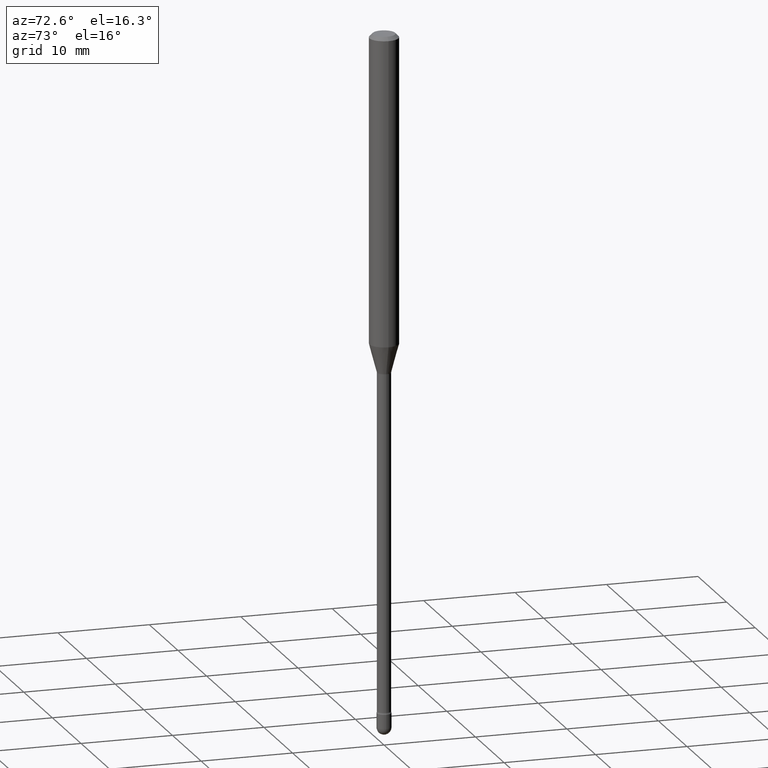
[diagram: clean part render]
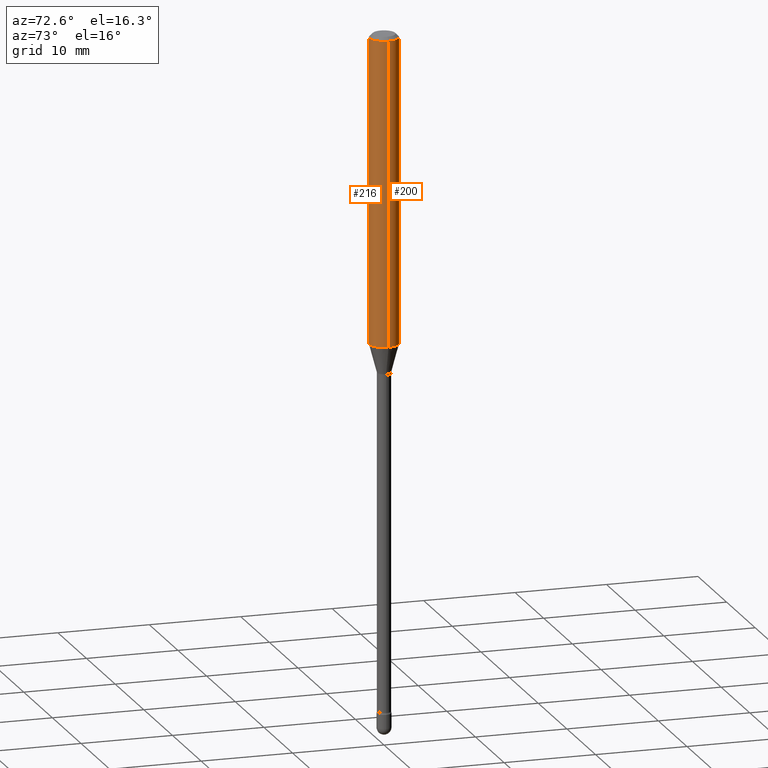
[diagram: same view with one multi-face feature highlighted, each face labeled with its STEP entity id]
A machine part, auxiliary view. The highlighted faces form ONE feature: a constant-radius fillet chain: 2 tangent blend faces with common blend radius 1.5875 mm. The faces share edges in the B-rep.
Their STEP definitions:
[1] entity #216 (Cylinder):
#11 = AXIS2_PLACEMENT_3D ( 'NONE', #434, #344, #302 ) ;
#30 = DIRECTION ( 'NONE',  ( -2.445468806185136877E-29, 3.491481338843145188E-15, 1.000000000000000000 ) ) ;
#33 = CARTESIAN_POINT ( 'NONE',  ( 0.06250000000000000000, -4.888073874380391431E-16, -0.01500000000000008271 ) ) ;
#38 = CARTESIAN_POINT ( 'NONE',  ( 3.241557197637640788E-29, -4.628084576552016011E-15, -1.325536105567578060 ) ) ;
#43 = VERTEX_POINT ( 'NONE', #33 ) ;
#44 = CARTESIAN_POINT ( 'NONE',  ( -0.06250000000000000000, -4.183995366701953394E-15, -1.325536105567578060 ) ) ;
#46 = CARTESIAN_POINT ( 'NONE',  ( -0.06250000000000000000, 4.440892098500642925E-16, 4.780733988912429571E-16 ) ) ;
#49 = CIRCLE ( 'NONE', #11, 0.06250000000000000000 ) ;
#75 = FACE_OUTER_BOUND ( 'NONE', #228, .T. ) ;
#104 = VERTEX_POINT ( 'NONE', #227 ) ;
#108 = ORIENTED_EDGE ( 'NONE', *, *, #383, .T. ) ;
#124 = DIRECTION ( 'NONE',  ( -2.445468806185136597E-29, 3.491481338843145583E-15, 1.000000000000000000 ) ) ;
#135 = AXIS2_PLACEMENT_3D ( 'NONE', #194, #124, #358 ) ;
#136 = VECTOR ( 'NONE', #30, 39.37007874015748143 ) ;
#151 = ORIENTED_EDGE ( 'NONE', *, *, #420, .F. ) ;
#194 = CARTESIAN_POINT ( 'NONE',  ( -1.169113584055446105E-44, 1.669184350826100908E-30, 4.780733988912460139E-16 ) ) ;
#195 = DIRECTION ( 'NONE',  ( -2.445468806185136877E-29, 3.491481338843145188E-15, 1.000000000000000000 ) ) ;
#216 = ADVANCED_FACE ( 'NONE', ( #75 ), #499, .T. ) ;
#225 = DIRECTION ( 'NONE',  ( -2.445468806185136597E-29, 3.491481338843145583E-15, 1.000000000000000000 ) ) ;
#227 = CARTESIAN_POINT ( 'NONE',  ( -0.06250000000000000000, -1.896139188467269126E-15, -0.01500000000000008271 ) ) ;
#228 = EDGE_LOOP ( 'NONE', ( #323, #395, #108, #151 ) ) ;
#249 = CIRCLE ( 'NONE', #505, 0.06250000000000000000 ) ;
#265 = LINE ( 'NONE', #510, #136 ) ;
#302 = DIRECTION ( 'NONE',  ( 1.000000000000000000, -6.982962677686266711E-15, 0.000000000000000000 ) ) ;
#323 = ORIENTED_EDGE ( 'NONE', *, *, #524, .F. ) ;
#344 = DIRECTION ( 'NONE',  ( -2.445468806185136597E-29, 3.491481338843145583E-15, 1.000000000000000000 ) ) ;
#358 = DIRECTION ( 'NONE',  ( 1.000000000000000000, -6.982962677686266711E-15, 4.852736867747366207E-29 ) ) ;
#383 = EDGE_CURVE ( 'NONE', #453, #43, #265, .T. ) ;
#389 = DIRECTION ( 'NONE',  ( 1.000000000000000000, -6.982962677686262766E-15, 0.000000000000000000 ) ) ;
#395 = ORIENTED_EDGE ( 'NONE', *, *, #446, .T. ) ;
#420 = EDGE_CURVE ( 'NONE', #104, #43, #49, .T. ) ;
#434 = CARTESIAN_POINT ( 'NONE',  ( 3.668203209277725232E-31, -5.237222008264747365E-17, -0.01500000000000008271 ) ) ;
#446 = EDGE_CURVE ( 'NONE', #521, #453, #249, .T. ) ;
#453 = VERTEX_POINT ( 'NONE', #562 ) ;
#488 = LINE ( 'NONE', #46, #566 ) ;
#499 = CYLINDRICAL_SURFACE ( 'NONE', #135, 0.06250000000000000000 ) ;
#505 = AXIS2_PLACEMENT_3D ( 'NONE', #38, #225, #389 ) ;
#510 = CARTESIAN_POINT ( 'NONE',  ( 0.06250000000000000000, -4.364351673553899931E-16, 4.780733988912490708E-16 ) ) ;
#521 = VERTEX_POINT ( 'NONE', #44 ) ;
#524 = EDGE_CURVE ( 'NONE', #521, #104, #488, .T. ) ;
#562 = CARTESIAN_POINT ( 'NONE',  ( 0.06250000000000000000, -5.064519743907408469E-15, -1.325536105567578060 ) ) ;
#566 = VECTOR ( 'NONE', #195, 39.37007874015748143 ) ;
[2] entity #200 (Cylinder):
#9 = CYLINDRICAL_SURFACE ( 'NONE', #332, 0.06250000000000000000 ) ;
#21 = ORIENTED_EDGE ( 'NONE', *, *, #524, .T. ) ;
#28 = FACE_OUTER_BOUND ( 'NONE', #489, .T. ) ;
#30 = DIRECTION ( 'NONE',  ( -2.445468806185136877E-29, 3.491481338843145188E-15, 1.000000000000000000 ) ) ;
#33 = CARTESIAN_POINT ( 'NONE',  ( 0.06250000000000000000, -4.888073874380391431E-16, -0.01500000000000008271 ) ) ;
#43 = VERTEX_POINT ( 'NONE', #33 ) ;
#44 = CARTESIAN_POINT ( 'NONE',  ( -0.06250000000000000000, -4.183995366701953394E-15, -1.325536105567578060 ) ) ;
#46 = CARTESIAN_POINT ( 'NONE',  ( -0.06250000000000000000, 4.440892098500642925E-16, 4.780733988912429571E-16 ) ) ;
#47 = EDGE_CURVE ( 'NONE', #43, #104, #365, .T. ) ;
#79 = DIRECTION ( 'NONE',  ( 1.000000000000000000, -6.982962677686266711E-15, 4.852736867747366207E-29 ) ) ;
#104 = VERTEX_POINT ( 'NONE', #227 ) ;
#136 = VECTOR ( 'NONE', #30, 39.37007874015748143 ) ;
#171 = EDGE_CURVE ( 'NONE', #453, #521, #314, .T. ) ;
#174 = ORIENTED_EDGE ( 'NONE', *, *, #383, .F. ) ;
#195 = DIRECTION ( 'NONE',  ( -2.445468806185136877E-29, 3.491481338843145188E-15, 1.000000000000000000 ) ) ;
#200 = ADVANCED_FACE ( 'NONE', ( #28 ), #9, .T. ) ;
#215 = CARTESIAN_POINT ( 'NONE',  ( 3.668203209277725232E-31, -5.237222008264747365E-17, -0.01500000000000008271 ) ) ;
#224 = DIRECTION ( 'NONE',  ( 1.000000000000000000, -6.982962677686266711E-15, 0.000000000000000000 ) ) ;
#227 = CARTESIAN_POINT ( 'NONE',  ( -0.06250000000000000000, -1.896139188467269126E-15, -0.01500000000000008271 ) ) ;
#235 = ORIENTED_EDGE ( 'NONE', *, *, #171, .T. ) ;
#242 = DIRECTION ( 'NONE',  ( -2.445468806185136597E-29, 3.491481338843145583E-15, 1.000000000000000000 ) ) ;
#252 = CARTESIAN_POINT ( 'NONE',  ( -1.169113584055446105E-44, 1.669184350826100908E-30, 4.780733988912460139E-16 ) ) ;
#265 = LINE ( 'NONE', #510, #136 ) ;
#273 = AXIS2_PLACEMENT_3D ( 'NONE', #372, #242, #329 ) ;
#314 = CIRCLE ( 'NONE', #273, 0.06250000000000000000 ) ;
#329 = DIRECTION ( 'NONE',  ( 1.000000000000000000, -6.982962677686262766E-15, 0.000000000000000000 ) ) ;
#332 = AXIS2_PLACEMENT_3D ( 'NONE', #252, #335, #79 ) ;
#335 = DIRECTION ( 'NONE',  ( -2.445468806185136597E-29, 3.491481338843145583E-15, 1.000000000000000000 ) ) ;
#365 = CIRCLE ( 'NONE', #493, 0.06250000000000000000 ) ;
#372 = CARTESIAN_POINT ( 'NONE',  ( 3.241557197637640788E-29, -4.628084576552016011E-15, -1.325536105567578060 ) ) ;
#383 = EDGE_CURVE ( 'NONE', #453, #43, #265, .T. ) ;
#453 = VERTEX_POINT ( 'NONE', #562 ) ;
#488 = LINE ( 'NONE', #46, #566 ) ;
#489 = EDGE_LOOP ( 'NONE', ( #235, #21, #516, #174 ) ) ;
#493 = AXIS2_PLACEMENT_3D ( 'NONE', #215, #554, #224 ) ;
#510 = CARTESIAN_POINT ( 'NONE',  ( 0.06250000000000000000, -4.364351673553899931E-16, 4.780733988912490708E-16 ) ) ;
#516 = ORIENTED_EDGE ( 'NONE', *, *, #47, .F. ) ;
#521 = VERTEX_POINT ( 'NONE', #44 ) ;
#524 = EDGE_CURVE ( 'NONE', #521, #104, #488, .T. ) ;
#554 = DIRECTION ( 'NONE',  ( -2.445468806185136597E-29, 3.491481338843145583E-15, 1.000000000000000000 ) ) ;
#562 = CARTESIAN_POINT ( 'NONE',  ( 0.06250000000000000000, -5.064519743907408469E-15, -1.325536105567578060 ) ) ;
#566 = VECTOR ( 'NONE', #195, 39.37007874015748143 ) ;